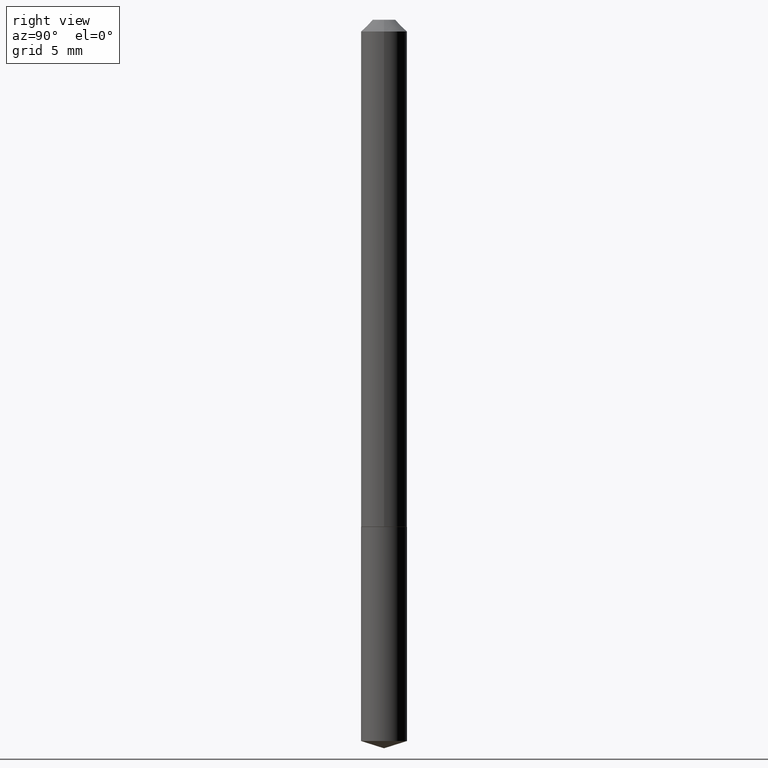
[diagram: clean part render]
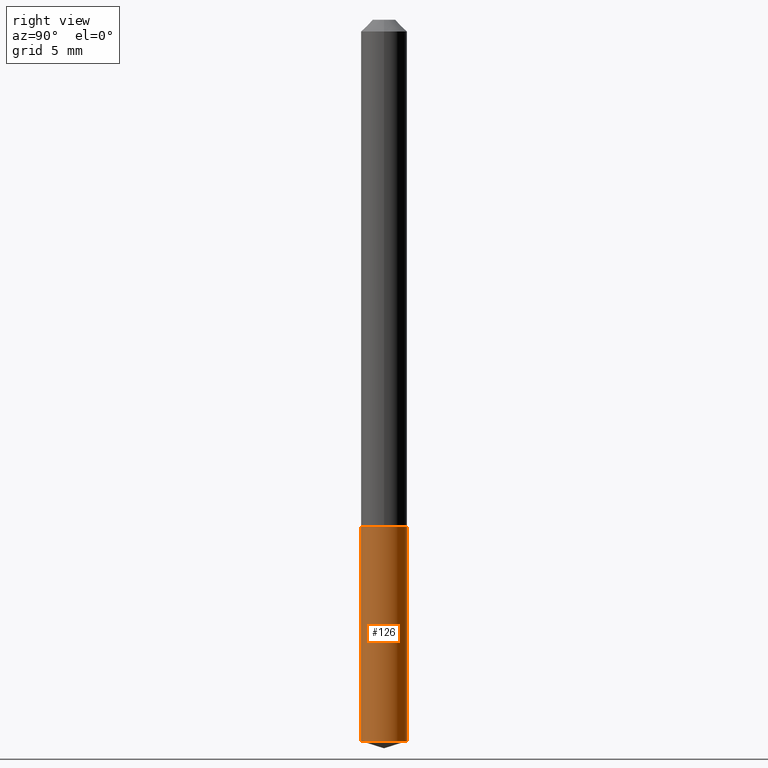
[diagram: same view with one face highlighted and labeled with its STEP entity id]
A machine part, right view. The second image highlights one B-rep face of the part: STEP entity #126.
In plain terms, the highlighted cylindrical surface (edge-blend (fillet) strip) has radius 1.5494 mm, axis along (-0, 0, 1).
Its self-contained STEP definition (entity closure, byte-faithful):
#10 = DIRECTION ( 'NONE',  ( -2.445528322279636320E-29, 3.491396108408376295E-15, 1.000000000000000000 ) ) ;
#12 = CARTESIAN_POINT ( 'NONE',  ( 4.334310688136938416E-16, 0.06099999999999530798, -1.342400000000000038 ) ) ;
#18 = CARTESIAN_POINT ( 'NONE',  ( 4.670553392895165587E-29, -6.668215835233079281E-15, -1.909866773878382551 ) ) ;
#25 = LINE ( 'NONE', #97, #377 ) ;
#49 = CARTESIAN_POINT ( 'NONE',  ( 4.334310688137077946E-16, 0.06099999999999530798, -1.342400000000000038 ) ) ;
#52 = VERTEX_POINT ( 'NONE', #371 ) ;
#58 = CIRCLE ( 'NONE', #84, 0.06099999999999999173 ) ;
#61 = CARTESIAN_POINT ( 'NONE',  ( 4.334310688137076467E-16, 0.06099999999999330957, -1.909866773878382773 ) ) ;
#76 = CIRCLE ( 'NONE', #182, 0.06099999999999999173 ) ;
#77 = EDGE_LOOP ( 'NONE', ( #266, #81, #203, #209 ) ) ;
#81 = ORIENTED_EDGE ( 'NONE', *, *, #170, .T. ) ;
#84 = AXIS2_PLACEMENT_3D ( 'NONE', #258, #316, #233 ) ;
#97 = CARTESIAN_POINT ( 'NONE',  ( -4.259607233388293679E-16, -0.06100000000000468242, -1.342399999999999594 ) ) ;
#116 = LINE ( 'NONE', #12, #279 ) ;
#118 = CARTESIAN_POINT ( 'NONE',  ( 3.282797325422927074E-29, -4.686964549263038164E-15, -1.342399999999999816 ) ) ;
#126 = ADVANCED_FACE ( 'NONE', ( #384 ), #358, .T. ) ;
#140 = DIRECTION ( 'NONE',  ( -2.445528322279636320E-29, 3.491396108408376295E-15, 1.000000000000000000 ) ) ;
#142 = EDGE_CURVE ( 'NONE', #343, #177, #58, .T. ) ;
#170 = EDGE_CURVE ( 'NONE', #372, #177, #116, .T. ) ;
#177 = VERTEX_POINT ( 'NONE', #49 ) ;
#182 = AXIS2_PLACEMENT_3D ( 'NONE', #18, #10, #288 ) ;
#203 = ORIENTED_EDGE ( 'NONE', *, *, #142, .F. ) ;
#209 = ORIENTED_EDGE ( 'NONE', *, *, #336, .F. ) ;
#214 = CARTESIAN_POINT ( 'NONE',  ( -4.259607233388293679E-16, -0.06100000000000468242, -1.342399999999999594 ) ) ;
#231 = DIRECTION ( 'NONE',  ( -2.445528322279636600E-29, 3.491396108408376295E-15, 1.000000000000000000 ) ) ;
#233 = DIRECTION ( 'NONE',  ( -6.982962677686265922E-15, -1.000000000000000000, 4.478439333875842027E-15 ) ) ;
#243 = EDGE_CURVE ( 'NONE', #52, #372, #76, .T. ) ;
#258 = CARTESIAN_POINT ( 'NONE',  ( 3.282797325422927074E-29, -4.686964549263038164E-15, -1.342399999999999816 ) ) ;
#260 = AXIS2_PLACEMENT_3D ( 'NONE', #118, #140, #356 ) ;
#266 = ORIENTED_EDGE ( 'NONE', *, *, #243, .T. ) ;
#279 = VECTOR ( 'NONE', #231, 39.37007874015748143 ) ;
#288 = DIRECTION ( 'NONE',  ( -6.982962677686265922E-15, -1.000000000000000000, 4.478439333875842027E-15 ) ) ;
#300 = DIRECTION ( 'NONE',  ( -2.445528322279636600E-29, 3.491396108408376295E-15, 1.000000000000000000 ) ) ;
#316 = DIRECTION ( 'NONE',  ( -2.445528322279636320E-29, 3.491396108408376295E-15, 1.000000000000000000 ) ) ;
#336 = EDGE_CURVE ( 'NONE', #52, #343, #25, .T. ) ;
#343 = VERTEX_POINT ( 'NONE', #214 ) ;
#356 = DIRECTION ( 'NONE',  ( -6.982962677686265922E-15, -1.000000000000000000, 4.478439333875842027E-15 ) ) ;
#358 = CYLINDRICAL_SURFACE ( 'NONE', #260, 0.06099999999999999173 ) ;
#371 = CARTESIAN_POINT ( 'NONE',  ( -4.259607233388153656E-16, -0.06100000000000665307, -1.909866773878382107 ) ) ;
#372 = VERTEX_POINT ( 'NONE', #61 ) ;
#377 = VECTOR ( 'NONE', #300, 39.37007874015748143 ) ;
#384 = FACE_OUTER_BOUND ( 'NONE', #77, .T. ) ;